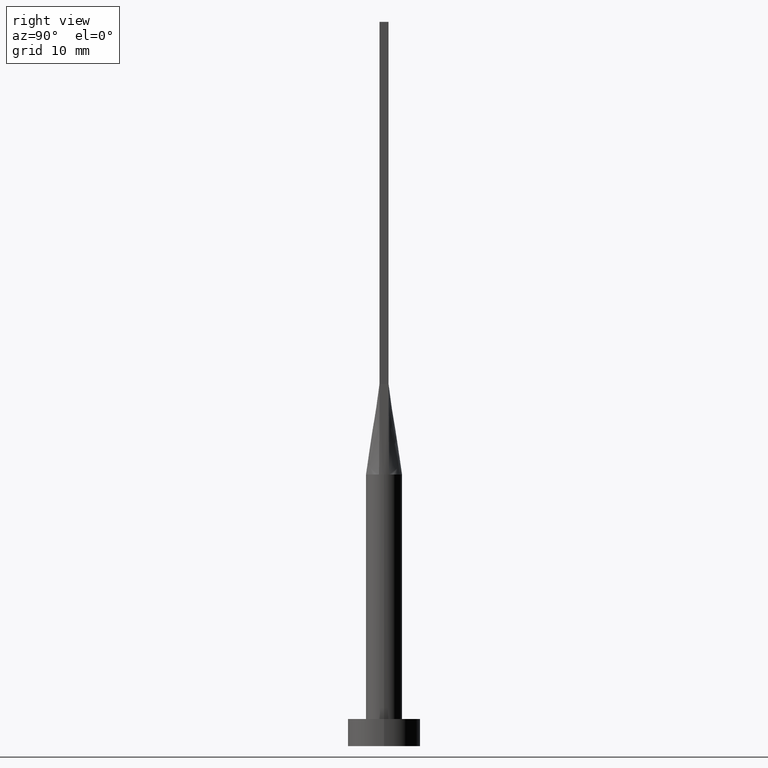
[diagram: clean part render]
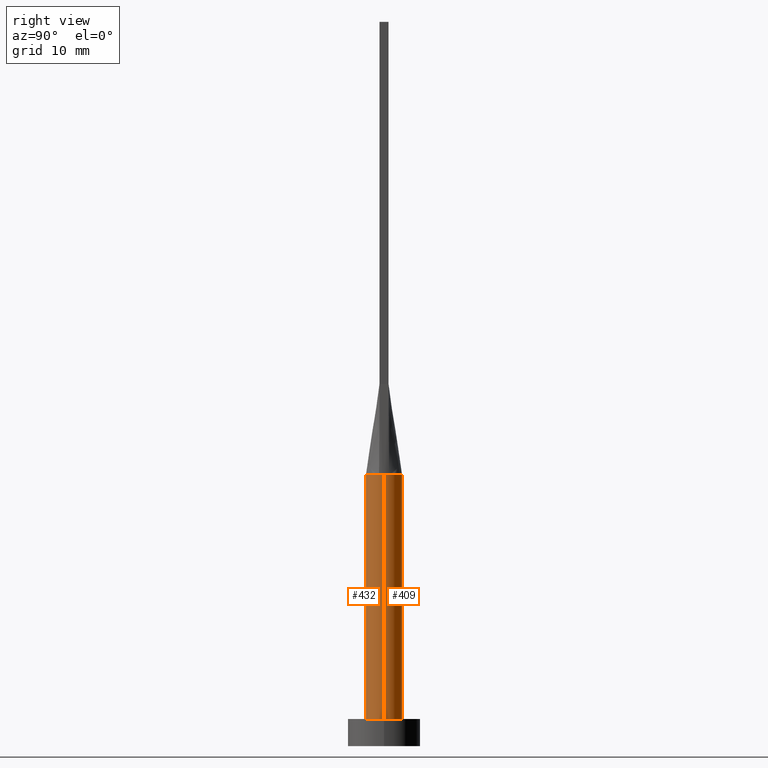
[diagram: same view with one multi-face feature highlighted, each face labeled with its STEP entity id]
A machine part, right view. The highlighted faces form ONE feature: a constant-radius fillet chain: 2 tangent blend faces with common blend radius 2 mm. The faces share edges in the B-rep.
Their STEP definitions:
[1] entity #409 (Cylinder):
#9 = DIRECTION ( 'NONE',  ( -1.000000000000000000, 0.000000000000000000, 0.000000000000000000 ) ) ;
#22 = EDGE_CURVE ( 'NONE', #352, #441, #483, .T. ) ;
#24 = ORIENTED_EDGE ( 'NONE', *, *, #63, .F. ) ;
#27 = DIRECTION ( 'NONE',  ( 0.000000000000000000, 0.000000000000000000, 1.000000000000000000 ) ) ;
#34 = VERTEX_POINT ( 'NONE', #92 ) ;
#36 = CARTESIAN_POINT ( 'NONE',  ( 1.923154993136894975, 0.5494733089275741778, 30.00000000000000000 ) ) ;
#47 = CARTESIAN_POINT ( 'NONE',  ( 1.812374357931689328, 0.8669367617086293221, 30.00000000000000355 ) ) ;
#51 = CARTESIAN_POINT ( 'NONE',  ( 0.000000000000000000, 0.000000000000000000, 30.00000000000000000 ) ) ;
#53 = VERTEX_POINT ( 'NONE', #330 ) ;
#57 = CARTESIAN_POINT ( 'NONE',  ( 2.000000000000000000, 2.449293598294706414E-16, 30.00000000000000000 ) ) ;
#59 = CARTESIAN_POINT ( 'NONE',  ( -2.000000000000000000, 0.000000000000000000, 30.00000000000000000 ) ) ;
#63 = EDGE_CURVE ( 'NONE', #53, #352, #233, .T. ) ;
#72 = DIRECTION ( 'NONE',  ( 0.000000000000000000, 0.000000000000000000, 1.000000000000000000 ) ) ;
#90 = CARTESIAN_POINT ( 'NONE',  ( -2.000000000000000000, 0.000000000000000000, 3.000000000000000000 ) ) ;
#92 = CARTESIAN_POINT ( 'NONE',  ( 2.000000000000000000, 2.449293598294706414E-16, 3.000000000000000000 ) ) ;
#107 = CARTESIAN_POINT ( 'NONE',  ( 0.000000000000000000, 0.000000000000000000, 3.000000000000000000 ) ) ;
#115 = CARTESIAN_POINT ( 'NONE',  ( 1.155438169178558461, 1.647245198242353714, 29.99999999999999645 ) ) ;
#125 = CARTESIAN_POINT ( 'NONE',  ( 0.9545234919502409987, 1.774214358793529955, 30.00000000000000355 ) ) ;
#128 = CARTESIAN_POINT ( 'NONE',  ( 0.2514338042514535632, 1.999999999999999556, 30.00000000000000355 ) ) ;
#129 = CARTESIAN_POINT ( 'NONE',  ( -1.923179810488875541, 0.5494804890868837388, 30.00000000000000000 ) ) ;
#133 = CARTESIAN_POINT ( 'NONE',  ( -0.5022746254375797248, 1.951069421695588169, 29.99999999999999645 ) ) ;
#155 = EDGE_CURVE ( 'NONE', #53, #34, #223, .T. ) ;
#158 = ORIENTED_EDGE ( 'NONE', *, *, #155, .T. ) ;
#160 = EDGE_CURVE ( 'NONE', #441, #518, #406, .T. ) ;
#163 = CARTESIAN_POINT ( 'NONE',  ( -2.000000000000000000, 8.710755549421510381E-17, 30.00000000000000000 ) ) ;
#166 = CYLINDRICAL_SURFACE ( 'NONE', #347, 2.000000000000000000 ) ;
#180 = CARTESIAN_POINT ( 'NONE',  ( -1.812374357931688884, 0.8669367617086288780, 30.00000000000001066 ) ) ;
#195 = AXIS2_PLACEMENT_3D ( 'NONE', #107, #27, #286 ) ;
#196 = DIRECTION ( 'NONE',  ( 1.000000000000000000, 0.000000000000000000, 0.000000000000000000 ) ) ;
#201 = ORIENTED_EDGE ( 'NONE', *, *, #22, .F. ) ;
#215 = CARTESIAN_POINT ( 'NONE',  ( 0.5022746254375803909, 1.951069421695587947, 29.99999999999999645 ) ) ;
#221 = CARTESIAN_POINT ( 'NONE',  ( -1.155438169178558017, 1.647245198242353936, 30.00000000000000711 ) ) ;
#223 = LINE ( 'NONE', #57, #278 ) ;
#233 = CIRCLE ( 'NONE', #247, 2.000000000000000000 ) ;
#247 = AXIS2_PLACEMENT_3D ( 'NONE', #371, #72, #196 ) ;
#254 = EDGE_CURVE ( 'NONE', #518, #383, #315, .T. ) ;
#276 = DIRECTION ( 'NONE',  ( 0.000000000000000000, 0.000000000000000000, 1.000000000000000000 ) ) ;
#278 = VECTOR ( 'NONE', #280, 1000.000000000000000 ) ;
#280 = DIRECTION ( 'NONE',  ( -0.000000000000000000, -0.000000000000000000, -1.000000000000000000 ) ) ;
#286 = DIRECTION ( 'NONE',  ( 1.000000000000000000, 0.000000000000000000, 0.000000000000000000 ) ) ;
#289 = ORIENTED_EDGE ( 'NONE', *, *, #254, .F. ) ;
#299 = ORIENTED_EDGE ( 'NONE', *, *, #363, .T. ) ;
#310 = VECTOR ( 'NONE', #502, 1000.000000000000000 ) ;
#311 = CARTESIAN_POINT ( 'NONE',  ( -1.486037034853319616, 1.356520562679218056, 30.00000000000000355 ) ) ;
#314 = CARTESIAN_POINT ( 'NONE',  ( -1.616149014776643966, 1.193458220519943103, 30.00000000000000711 ) ) ;
#315 = LINE ( 'NONE', #59, #310 ) ;
#330 = CARTESIAN_POINT ( 'NONE',  ( 2.000000000000000000, 2.759698982225367658E-17, 30.00000000000000000 ) ) ;
#347 = AXIS2_PLACEMENT_3D ( 'NONE', #51, #490, #9 ) ;
#352 = VERTEX_POINT ( 'NONE', #36 ) ;
#363 = EDGE_CURVE ( 'NONE', #34, #383, #461, .T. ) ;
#371 = CARTESIAN_POINT ( 'NONE',  ( 0.000000000000000000, 0.000000000000000000, 30.00000000000000000 ) ) ;
#383 = VERTEX_POINT ( 'NONE', #90 ) ;
#387 = FACE_OUTER_BOUND ( 'NONE', #418, .T. ) ;
#405 = CARTESIAN_POINT ( 'NONE',  ( 0.000000000000000000, 0.000000000000000000, 30.00000000000000000 ) ) ;
#406 = CIRCLE ( 'NONE', #437, 2.000000000000000000 ) ;
#409 = ADVANCED_FACE ( 'NONE', ( #387 ), #166, .T. ) ;
#418 = EDGE_LOOP ( 'NONE', ( #24, #158, #299, #289, #463, #201 ) ) ;
#437 = AXIS2_PLACEMENT_3D ( 'NONE', #405, #276, #465 ) ;
#441 = VERTEX_POINT ( 'NONE', #129 ) ;
#447 = CARTESIAN_POINT ( 'NONE',  ( 1.879022738048942154, 0.7035303061092218480, 30.00000000000000355 ) ) ;
#453 = CARTESIAN_POINT ( 'NONE',  ( -0.9545234919502401105, 1.774214358793530177, 30.00000000000000355 ) ) ;
#461 = CIRCLE ( 'NONE', #195, 2.000000000000000000 ) ;
#463 = ORIENTED_EDGE ( 'NONE', *, *, #160, .F. ) ;
#465 = DIRECTION ( 'NONE',  ( 1.000000000000000000, 0.000000000000000000, 0.000000000000000000 ) ) ;
#483 = B_SPLINE_CURVE_WITH_KNOTS ( 'NONE', 3,
 ( #578, #447, #47, #528, #532, #115, #125, #215, #128, #495, #133, #453, #221, #311, #314, #180, #500, #544 ),
 .UNSPECIFIED., .F., .F.,
 ( 4, 2, 2, 2, 2, 2, 2, 2, 4 ),
 ( 0.000000000000000000, 0.1249999999999999722, 0.2500000000000000000, 0.3750000000000000000, 0.5000000000000001110, 0.6250000000000001110, 0.7500000000000000000, 0.8750000000000000000, 1.000000000000000000 ),
 .UNSPECIFIED. ) ;
#490 = DIRECTION ( 'NONE',  ( -0.000000000000000000, -0.000000000000000000, -1.000000000000000000 ) ) ;
#495 = CARTESIAN_POINT ( 'NONE',  ( -0.2514338042514528415, 1.999999999999999556, 30.00000000000001066 ) ) ;
#500 = CARTESIAN_POINT ( 'NONE',  ( -1.879022738048941710, 0.7035303061092221810, 30.00000000000000000 ) ) ;
#502 = DIRECTION ( 'NONE',  ( -0.000000000000000000, -0.000000000000000000, -1.000000000000000000 ) ) ;
#518 = VERTEX_POINT ( 'NONE', #163 ) ;
#528 = CARTESIAN_POINT ( 'NONE',  ( 1.616149014776643522, 1.193458220519943103, 30.00000000000000000 ) ) ;
#532 = CARTESIAN_POINT ( 'NONE',  ( 1.486037034853319616, 1.356520562679217834, 29.99999999999999289 ) ) ;
#544 = CARTESIAN_POINT ( 'NONE',  ( -1.923179810488875541, 0.5494804890868837388, 30.00000000000000000 ) ) ;
#578 = CARTESIAN_POINT ( 'NONE',  ( 1.923154993136894975, 0.5494733089275741778, 30.00000000000000000 ) ) ;
[2] entity #432 (Cylinder):
#1 = AXIS2_PLACEMENT_3D ( 'NONE', #354, #523, #533 ) ;
#34 = VERTEX_POINT ( 'NONE', #92 ) ;
#48 = ORIENTED_EDGE ( 'NONE', *, *, #155, .F. ) ;
#53 = VERTEX_POINT ( 'NONE', #330 ) ;
#56 = AXIS2_PLACEMENT_3D ( 'NONE', #321, #283, #467 ) ;
#57 = CARTESIAN_POINT ( 'NONE',  ( 2.000000000000000000, 2.449293598294706414E-16, 30.00000000000000000 ) ) ;
#59 = CARTESIAN_POINT ( 'NONE',  ( -2.000000000000000000, 0.000000000000000000, 30.00000000000000000 ) ) ;
#65 = CIRCLE ( 'NONE', #56, 2.000000000000000000 ) ;
#90 = CARTESIAN_POINT ( 'NONE',  ( -2.000000000000000000, 0.000000000000000000, 3.000000000000000000 ) ) ;
#92 = CARTESIAN_POINT ( 'NONE',  ( 2.000000000000000000, 2.449293598294706414E-16, 3.000000000000000000 ) ) ;
#103 = ORIENTED_EDGE ( 'NONE', *, *, #274, .T. ) ;
#117 = CARTESIAN_POINT ( 'NONE',  ( 1.923186205402444449, -0.5494823831763672173, 30.00000000000000000 ) ) ;
#122 = AXIS2_PLACEMENT_3D ( 'NONE', #538, #580, #268 ) ;
#123 = CIRCLE ( 'NONE', #510, 2.000000000000000000 ) ;
#138 = DIRECTION ( 'NONE',  ( 0.000000000000000000, 0.000000000000000000, 1.000000000000000000 ) ) ;
#149 = CIRCLE ( 'NONE', #509, 2.000000000000000000 ) ;
#155 = EDGE_CURVE ( 'NONE', #53, #34, #223, .T. ) ;
#163 = CARTESIAN_POINT ( 'NONE',  ( -2.000000000000000000, 8.710755549421510381E-17, 30.00000000000000000 ) ) ;
#204 = CARTESIAN_POINT ( 'NONE',  ( -1.923161340940673369, -0.5494751859438878894, 30.00000000000000000 ) ) ;
#210 = EDGE_LOOP ( 'NONE', ( #48, #355, #402, #259, #368, #103 ) ) ;
#223 = LINE ( 'NONE', #57, #278 ) ;
#230 = DIRECTION ( 'NONE',  ( 1.000000000000000000, 0.000000000000000000, 0.000000000000000000 ) ) ;
#231 = CIRCLE ( 'NONE', #1, 2.000000000000000000 ) ;
#254 = EDGE_CURVE ( 'NONE', #518, #383, #315, .T. ) ;
#259 = ORIENTED_EDGE ( 'NONE', *, *, #574, .F. ) ;
#268 = DIRECTION ( 'NONE',  ( -1.000000000000000000, 0.000000000000000000, 0.000000000000000000 ) ) ;
#274 = EDGE_CURVE ( 'NONE', #383, #34, #123, .T. ) ;
#275 = CARTESIAN_POINT ( 'NONE',  ( 0.000000000000000000, 0.000000000000000000, 30.00000000000000000 ) ) ;
#278 = VECTOR ( 'NONE', #280, 1000.000000000000000 ) ;
#280 = DIRECTION ( 'NONE',  ( -0.000000000000000000, -0.000000000000000000, -1.000000000000000000 ) ) ;
#283 = DIRECTION ( 'NONE',  ( 0.000000000000000000, 0.000000000000000000, 1.000000000000000000 ) ) ;
#296 = EDGE_CURVE ( 'NONE', #484, #53, #65, .T. ) ;
#310 = VECTOR ( 'NONE', #502, 1000.000000000000000 ) ;
#315 = LINE ( 'NONE', #59, #310 ) ;
#321 = CARTESIAN_POINT ( 'NONE',  ( 0.000000000000000000, 0.000000000000000000, 30.00000000000000000 ) ) ;
#330 = CARTESIAN_POINT ( 'NONE',  ( 2.000000000000000000, 2.759698982225367658E-17, 30.00000000000000000 ) ) ;
#349 = FACE_OUTER_BOUND ( 'NONE', #210, .T. ) ;
#353 = VERTEX_POINT ( 'NONE', #204 ) ;
#354 = CARTESIAN_POINT ( 'NONE',  ( 0.000000000000000000, 0.000000000000000000, 30.00000000000000000 ) ) ;
#355 = ORIENTED_EDGE ( 'NONE', *, *, #296, .F. ) ;
#368 = ORIENTED_EDGE ( 'NONE', *, *, #254, .T. ) ;
#383 = VERTEX_POINT ( 'NONE', #90 ) ;
#394 = CYLINDRICAL_SURFACE ( 'NONE', #122, 2.000000000000000000 ) ;
#402 = ORIENTED_EDGE ( 'NONE', *, *, #454, .F. ) ;
#419 = CARTESIAN_POINT ( 'NONE',  ( 0.000000000000000000, 0.000000000000000000, 3.000000000000000000 ) ) ;
#432 = ADVANCED_FACE ( 'NONE', ( #349 ), #394, .T. ) ;
#454 = EDGE_CURVE ( 'NONE', #353, #484, #231, .T. ) ;
#456 = DIRECTION ( 'NONE',  ( 0.000000000000000000, 0.000000000000000000, 1.000000000000000000 ) ) ;
#464 = DIRECTION ( 'NONE',  ( 1.000000000000000000, 0.000000000000000000, 0.000000000000000000 ) ) ;
#467 = DIRECTION ( 'NONE',  ( 1.000000000000000000, 3.552713678800500929E-15, 0.000000000000000000 ) ) ;
#484 = VERTEX_POINT ( 'NONE', #117 ) ;
#502 = DIRECTION ( 'NONE',  ( -0.000000000000000000, -0.000000000000000000, -1.000000000000000000 ) ) ;
#509 = AXIS2_PLACEMENT_3D ( 'NONE', #275, #138, #464 ) ;
#510 = AXIS2_PLACEMENT_3D ( 'NONE', #419, #456, #230 ) ;
#518 = VERTEX_POINT ( 'NONE', #163 ) ;
#523 = DIRECTION ( 'NONE',  ( 0.000000000000000000, 0.000000000000000000, 1.000000000000000000 ) ) ;
#533 = DIRECTION ( 'NONE',  ( 1.000000000000000000, 0.000000000000000000, 0.000000000000000000 ) ) ;
#538 = CARTESIAN_POINT ( 'NONE',  ( 0.000000000000000000, 0.000000000000000000, 30.00000000000000000 ) ) ;
#574 = EDGE_CURVE ( 'NONE', #518, #353, #149, .T. ) ;
#580 = DIRECTION ( 'NONE',  ( -0.000000000000000000, -0.000000000000000000, -1.000000000000000000 ) ) ;